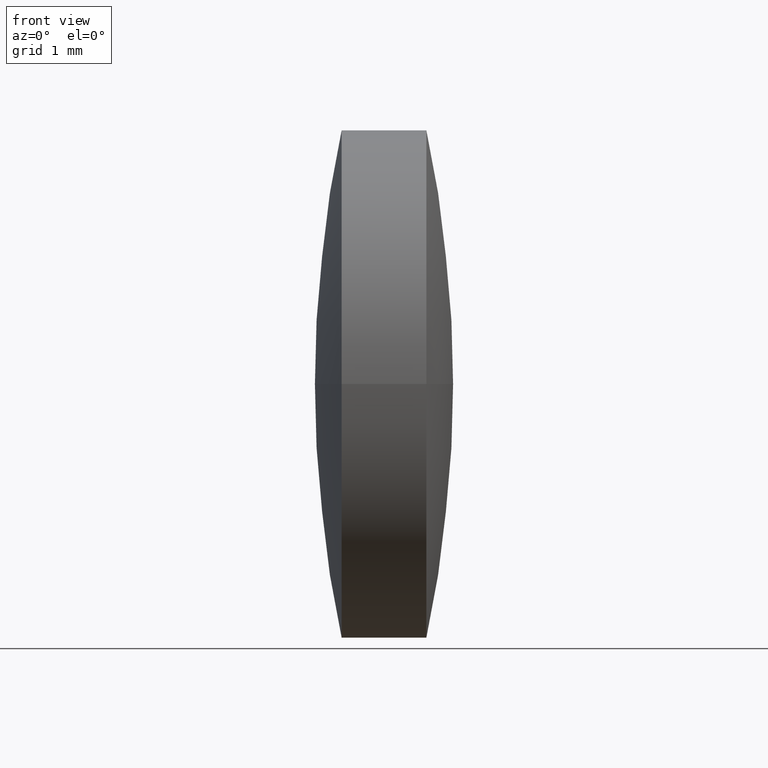
[diagram: clean part render]
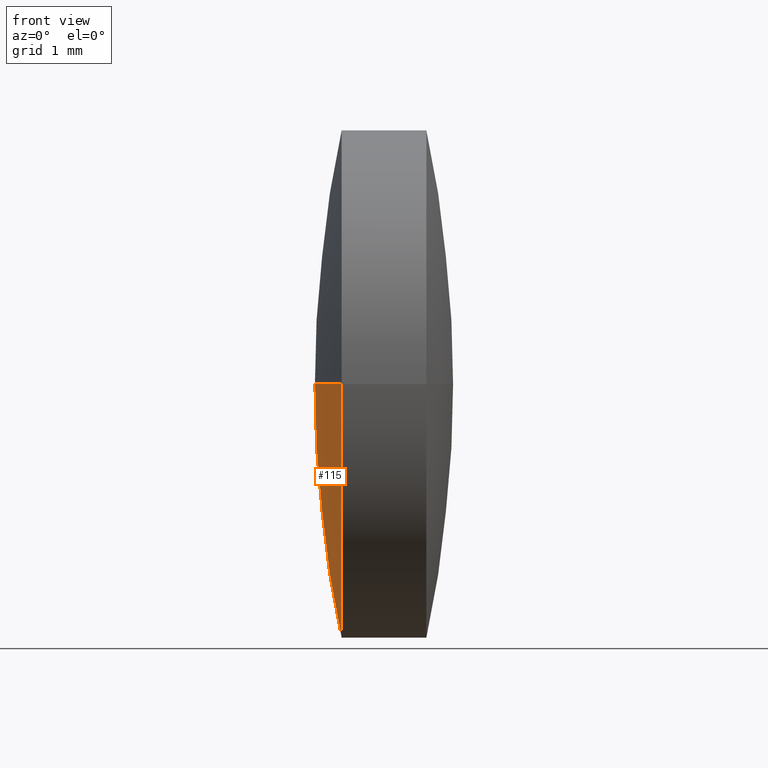
[diagram: same view with one face highlighted and labeled with its STEP entity id]
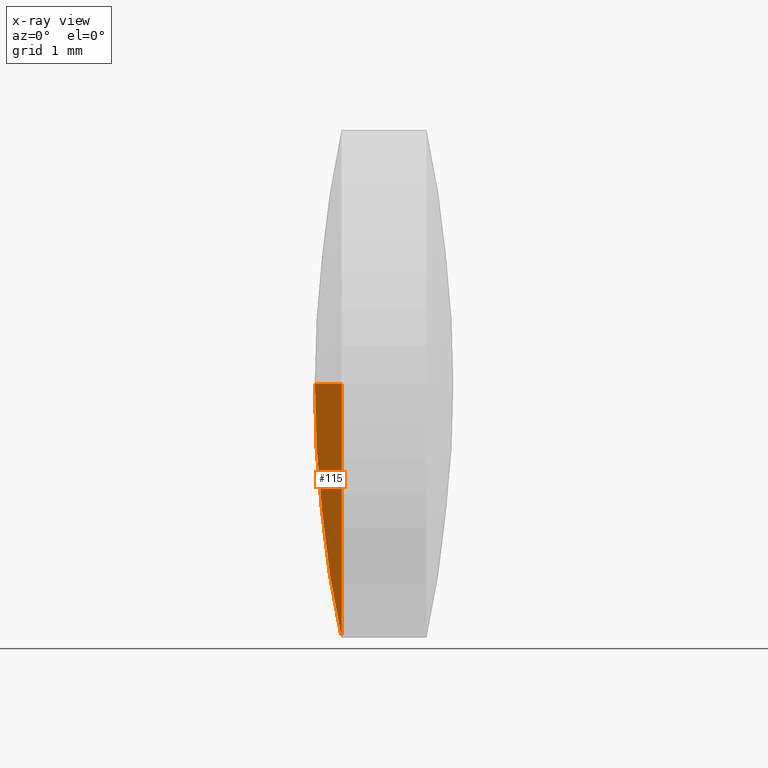
[diagram: x-ray of the same camera — body ghosted, the highlighted face saturated]
A machine part, front view. The second image highlights one B-rep face of the part: STEP entity #115.
The next image is the same camera in x-ray: the body ghosted, the highlighted face saturated — about 0% of this face is hidden behind the body in this view.
In plain terms, the highlighted spherical surface has radius 14.4434 mm.
Its self-contained STEP definition (entity closure, byte-faithful):
#3 = EDGE_LOOP ( 'NONE', ( #146, #80, #222 ) ) ;
#7 = SPHERICAL_SURFACE ( 'NONE', #13, 14.44341035348024200 ) ;
#13 = AXIS2_PLACEMENT_3D ( 'NONE', #117, #83, #231 ) ;
#22 = DIRECTION ( 'NONE',  ( 0.0000000000000000000, 1.000000000000000000, 1.224646799147353200E-016 ) ) ;
#23 = AXIS2_PLACEMENT_3D ( 'NONE', #44, #96, #94 ) ;
#44 = CARTESIAN_POINT ( 'NONE',  ( 19.92319566555584100, 11.48412118657908300, 0.0000000000000000000 ) ) ;
#65 = CARTESIAN_POINT ( 'NONE',  ( 34.05161039046465300, 11.48412118657908600, 0.0000000000000000000 ) ) ;
#79 = FACE_OUTER_BOUND ( 'NONE', #3, .T. ) ;
#80 = ORIENTED_EDGE ( 'NONE', *, *, #174, .T. ) ;
#83 = DIRECTION ( 'NONE',  ( -0.0000000000000000000, 0.0000000000000000000, -1.000000000000000000 ) ) ;
#94 = DIRECTION ( 'NONE',  ( 2.312964634635743400E-015, -1.000000000000000000, 0.0000000000000000000 ) ) ;
#96 = DIRECTION ( 'NONE',  ( -1.000000000000000000, -2.381146930342230200E-015, -0.0000000000000000000 ) ) ;
#115 = ADVANCED_FACE ( 'NONE', ( #79 ), #7, .T. ) ;
#116 = AXIS2_PLACEMENT_3D ( 'NONE', #65, #209, #189 ) ;
#117 = CARTESIAN_POINT ( 'NONE',  ( 34.05161039046465300, 11.48412118657908600, 0.0000000000000000000 ) ) ;
#119 = VERTEX_POINT ( 'NONE', #226 ) ;
#122 = CARTESIAN_POINT ( 'NONE',  ( 19.92319566555583400, 14.48412118657908500, 0.0000000000000000000 ) ) ;
#132 = CIRCLE ( 'NONE', #116, 14.44341035348024200 ) ;
#145 = CIRCLE ( 'NONE', #177, 14.44341035348024100 ) ;
#146 = ORIENTED_EDGE ( 'NONE', *, *, #230, .T. ) ;
#166 = DIRECTION ( 'NONE',  ( -2.916063966543157700E-031, 1.224646799147353200E-016, -1.000000000000000000 ) ) ;
#167 = CARTESIAN_POINT ( 'NONE',  ( 19.60820003698440700, 11.48412118657905400, 0.0000000000000000000 ) ) ;
#174 = EDGE_CURVE ( 'NONE', #119, #229, #145, .T. ) ;
#177 = AXIS2_PLACEMENT_3D ( 'NONE', #190, #166, #22 ) ;
#189 = DIRECTION ( 'NONE',  ( 1.000000000000000000, 0.0000000000000000000, 0.0000000000000000000 ) ) ;
#190 = CARTESIAN_POINT ( 'NONE',  ( 34.05161039046465300, 11.48412118657908600, 0.0000000000000000000 ) ) ;
#209 = DIRECTION ( 'NONE',  ( -0.0000000000000000000, 0.0000000000000000000, 1.000000000000000000 ) ) ;
#215 = CIRCLE ( 'NONE', #23, 2.999999999999999100 ) ;
#222 = ORIENTED_EDGE ( 'NONE', *, *, #223, .F. ) ;
#223 = EDGE_CURVE ( 'NONE', #301, #229, #132, .T. ) ;
#226 = CARTESIAN_POINT ( 'NONE',  ( 19.92319566555585200, 8.484121186579050900, -3.673940397442060400E-016 ) ) ;
#229 = VERTEX_POINT ( 'NONE', #167 ) ;
#230 = EDGE_CURVE ( 'NONE', #301, #119, #215, .T. ) ;
#231 = DIRECTION ( 'NONE',  ( -2.402096781192418800E-015, 1.000000000000000000, 0.0000000000000000000 ) ) ;
#301 = VERTEX_POINT ( 'NONE', #122 ) ;